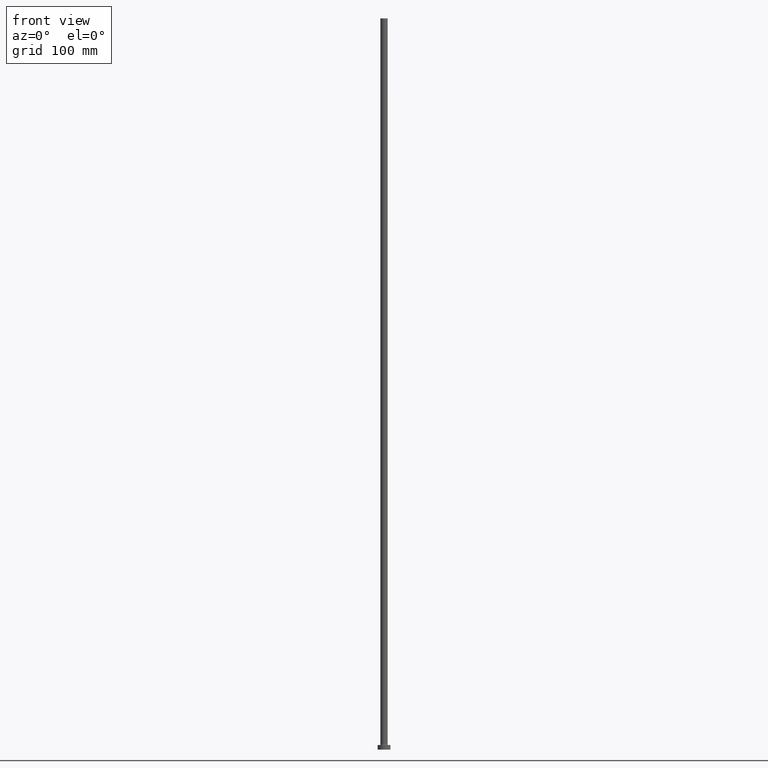
[diagram: clean part render]
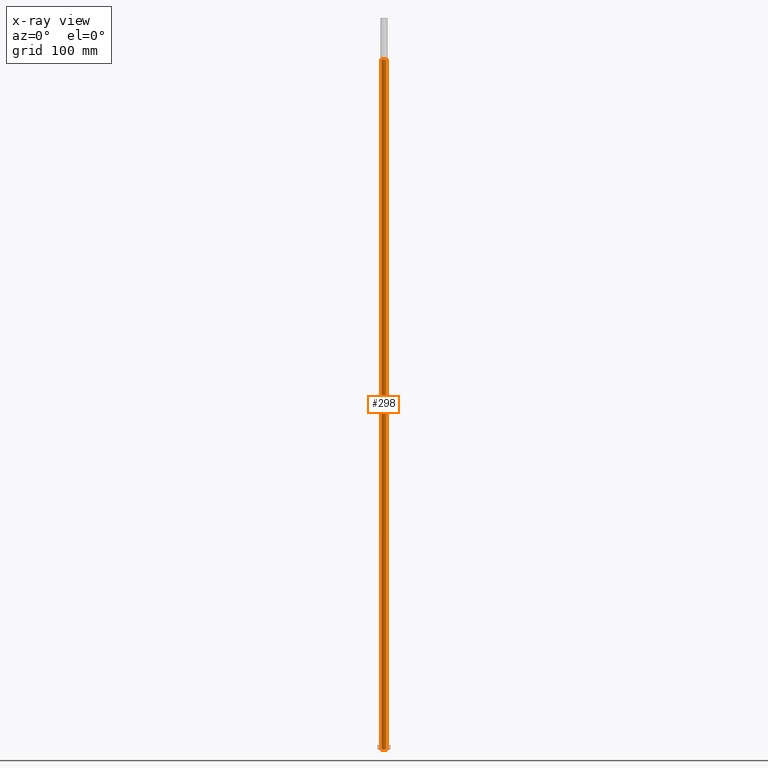
[diagram: x-ray — body ghosted, one internal face saturated and labeled with its STEP entity id]
A machine part, front view, then the same camera in x-ray: the body is ghosted and one INTERNAL B-rep face — a face not visible from any outside direction — is saturated and labeled: STEP entity #298.
In plain terms, the highlighted cylindrical surface (edge-blend (fillet) strip) has radius 2.65 mm, axis along (0, 0, -1).
Its self-contained STEP definition (entity closure, byte-faithful):
#3 = DIRECTION ( 'NONE',  ( 0.000000000000000000, 0.000000000000000000, -1.000000000000000000 ) ) ;
#8 = CARTESIAN_POINT ( 'NONE',  ( 2.649999999999999911, 3.245314017740485962E-16, 762.4953318805775098 ) ) ;
#37 = DIRECTION ( 'NONE',  ( 1.000000000000000000, 0.000000000000000000, 0.000000000000000000 ) ) ;
#41 = EDGE_LOOP ( 'NONE', ( #136, #132, #248, #49 ) ) ;
#49 = ORIENTED_EDGE ( 'NONE', *, *, #150, .F. ) ;
#64 = CARTESIAN_POINT ( 'NONE',  ( 0.000000000000000000, 0.000000000000000000, 755.0000000000000000 ) ) ;
#78 = DIRECTION ( 'NONE',  ( 0.000000000000000000, 0.000000000000000000, 1.000000000000000000 ) ) ;
#81 = VECTOR ( 'NONE', #433, 1000.000000000000000 ) ;
#85 = VERTEX_POINT ( 'NONE', #193 ) ;
#87 = CIRCLE ( 'NONE', #253, 2.649999999999999911 ) ;
#113 = CARTESIAN_POINT ( 'NONE',  ( 2.649999999999999911, 3.245314017740485962E-16, 755.0000000000000000 ) ) ;
#132 = ORIENTED_EDGE ( 'NONE', *, *, #444, .T. ) ;
#134 = DIRECTION ( 'NONE',  ( -0.000000000000000000, -0.000000000000000000, -1.000000000000000000 ) ) ;
#136 = ORIENTED_EDGE ( 'NONE', *, *, #340, .T. ) ;
#139 = VERTEX_POINT ( 'NONE', #113 ) ;
#150 = EDGE_CURVE ( 'NONE', #176, #354, #408, .T. ) ;
#176 = VERTEX_POINT ( 'NONE', #395 ) ;
#178 = AXIS2_PLACEMENT_3D ( 'NONE', #414, #301, #353 ) ;
#193 = CARTESIAN_POINT ( 'NONE',  ( 2.649999999999999911, 3.245314017740485962E-16, 0.000000000000000000 ) ) ;
#235 = DIRECTION ( 'NONE',  ( 1.000000000000000000, 0.000000000000000000, 0.000000000000000000 ) ) ;
#237 = CARTESIAN_POINT ( 'NONE',  ( -2.649999999999999911, 0.000000000000000000, 0.000000000000000000 ) ) ;
#248 = ORIENTED_EDGE ( 'NONE', *, *, #316, .T. ) ;
#253 = AXIS2_PLACEMENT_3D ( 'NONE', #312, #134, #235 ) ;
#298 = ADVANCED_FACE ( 'NONE', ( #445 ), #341, .F. ) ;
#301 = DIRECTION ( 'NONE',  ( 0.000000000000000000, 0.000000000000000000, -1.000000000000000000 ) ) ;
#312 = CARTESIAN_POINT ( 'NONE',  ( 0.000000000000000000, 0.000000000000000000, 0.000000000000000000 ) ) ;
#316 = EDGE_CURVE ( 'NONE', #85, #354, #87, .T. ) ;
#340 = EDGE_CURVE ( 'NONE', #176, #139, #406, .T. ) ;
#341 = CYLINDRICAL_SURFACE ( 'NONE', #178, 2.649999999999999911 ) ;
#353 = DIRECTION ( 'NONE',  ( -1.000000000000000000, 0.000000000000000000, 0.000000000000000000 ) ) ;
#354 = VERTEX_POINT ( 'NONE', #237 ) ;
#380 = VECTOR ( 'NONE', #3, 1000.000000000000000 ) ;
#387 = CARTESIAN_POINT ( 'NONE',  ( -2.649999999999999911, 0.000000000000000000, 762.4953318805775098 ) ) ;
#388 = AXIS2_PLACEMENT_3D ( 'NONE', #64, #78, #37 ) ;
#393 = LINE ( 'NONE', #8, #81 ) ;
#395 = CARTESIAN_POINT ( 'NONE',  ( -2.649999999999999911, 0.000000000000000000, 755.0000000000000000 ) ) ;
#406 = CIRCLE ( 'NONE', #388, 2.649999999999999911 ) ;
#408 = LINE ( 'NONE', #387, #380 ) ;
#414 = CARTESIAN_POINT ( 'NONE',  ( 0.000000000000000000, 0.000000000000000000, 762.4953318805775098 ) ) ;
#433 = DIRECTION ( 'NONE',  ( 0.000000000000000000, 0.000000000000000000, -1.000000000000000000 ) ) ;
#444 = EDGE_CURVE ( 'NONE', #139, #85, #393, .T. ) ;
#445 = FACE_OUTER_BOUND ( 'NONE', #41, .T. ) ;